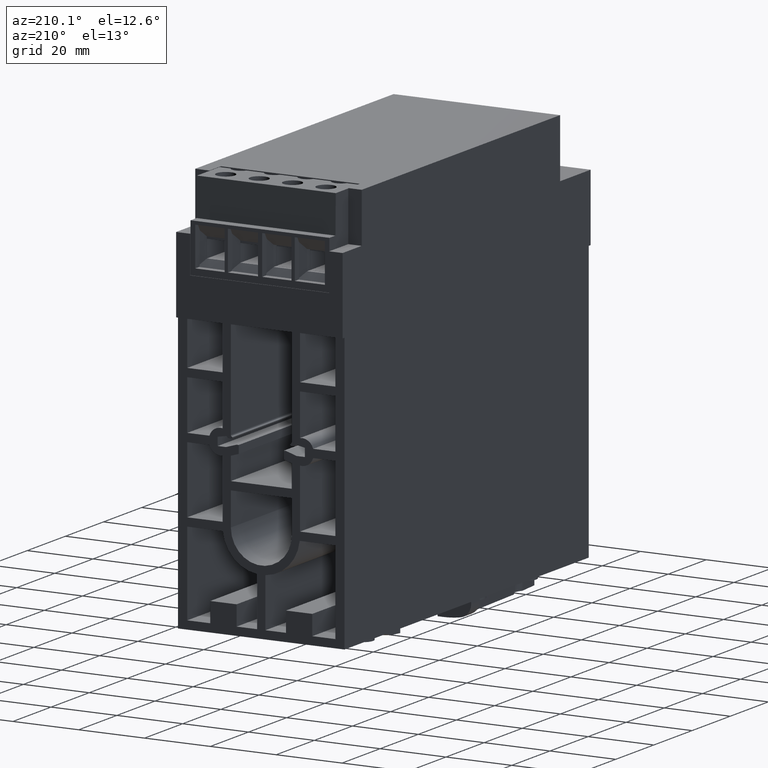
[diagram: clean part render]
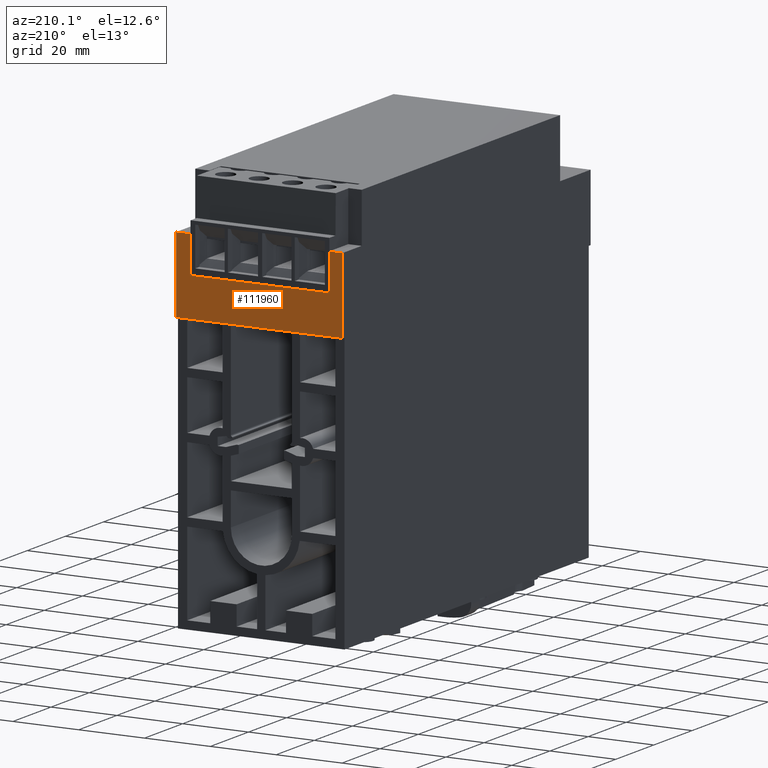
[diagram: same view with one face highlighted and labeled with its STEP entity id]
A machine part, auxiliary view. The second image highlights one B-rep face of the part: STEP entity #111960.
In plain terms, the highlighted planar face has unit normal (0, 1, 0).
Its self-contained STEP definition (entity closure, byte-faithful):
#1350=CARTESIAN_POINT('',(25.2993386672442,129.,-107.));
#1360=VERTEX_POINT('',#1350);
#1390=CARTESIAN_POINT('',(25.2993386672442,0.,-107.));
#1400=DIRECTION('',(0.,-1.,0.));
#1410=VECTOR('',#1400,1.);
#1420=LINE('',#1390,#1410);
#1430=CARTESIAN_POINT('',(25.2993386672442,106.,-107.));
#1440=VERTEX_POINT('',#1430);
#1450=EDGE_CURVE('',#1360,#1440,#1420,.T.);
#28330=CARTESIAN_POINT('',(-25.3,106.,-107.));
#28340=VERTEX_POINT('',#28330);
#28790=CARTESIAN_POINT('',(0.,106.,-107.));
#28800=DIRECTION('',(-1.,0.,0.));
#28810=VECTOR('',#28800,1.);
#28820=LINE('',#28790,#28810);
#28830=EDGE_CURVE('',#1440,#28340,#28820,.T.);
#56800=CARTESIAN_POINT('',(-25.3,129.,-107.));
#56810=VERTEX_POINT('',#56800);
#56840=CARTESIAN_POINT('',(0.,129.,-107.));
#56850=DIRECTION('',(-1.,0.,0.));
#56860=VECTOR('',#56850,1.);
#56870=LINE('',#56840,#56860);
#56880=CARTESIAN_POINT('',(-21.2,129.,-107.));
#56890=VERTEX_POINT('',#56880);
#56900=EDGE_CURVE('',#56890,#56810,#56870,.T.);
#58430=CARTESIAN_POINT('',(21.,129.,-107.));
#58440=VERTEX_POINT('',#58430);
#58590=CARTESIAN_POINT('',(21.,117.8,-107.));
#58600=VERTEX_POINT('',#58590);
#58630=CARTESIAN_POINT('',(21.,0.,-107.));
#58640=DIRECTION('',(0.,-1.,0.));
#58650=VECTOR('',#58640,1.);
#58660=LINE('',#58630,#58650);
#58670=EDGE_CURVE('',#58440,#58600,#58660,.T.);
#72010=CARTESIAN_POINT('',(-21.2,117.8,-107.));
#72020=VERTEX_POINT('',#72010);
#72120=CARTESIAN_POINT('',(-21.2,0.,-107.));
#72130=DIRECTION('',(0.,-1.,0.));
#72140=VECTOR('',#72130,1.);
#72150=LINE('',#72120,#72140);
#72160=EDGE_CURVE('',#56890,#72020,#72150,.T.);
#90470=CARTESIAN_POINT('',(0.,117.8,-107.));
#90480=DIRECTION('',(1.,0.,0.));
#90490=VECTOR('',#90480,1.);
#90500=LINE('',#90470,#90490);
#90510=EDGE_CURVE('',#72020,#58600,#90500,.T.);
#111600=CARTESIAN_POINT('',(-25.3,0.,-107.));
#111610=DIRECTION('',(0.,1.,0.));
#111620=VECTOR('',#111610,1.);
#111630=LINE('',#111600,#111620);
#111640=EDGE_CURVE('',#28340,#56810,#111630,.T.);
#111760=CARTESIAN_POINT('',(26.251323,105.423677,-107.));
#111770=DIRECTION('',(0.,0.,-1.));
#111780=DIRECTION('',(-1.,0.,0.));
#111790=AXIS2_PLACEMENT_3D('',#111760,#111770,#111780);
#111800=PLANE('',#111790);
#111810=CARTESIAN_POINT('',(0.,129.,-107.));
#111820=DIRECTION('',(-1.,0.,0.));
#111830=VECTOR('',#111820,1.);
#111840=LINE('',#111810,#111830);
#111850=EDGE_CURVE('',#1360,#58440,#111840,.T.);
#111860=ORIENTED_EDGE('',*,*,#111850,.F.);
#111870=ORIENTED_EDGE('',*,*,#58670,.F.);
#111880=ORIENTED_EDGE('',*,*,#90510,.T.);
#111890=ORIENTED_EDGE('',*,*,#72160,.T.);
#111900=ORIENTED_EDGE('',*,*,#56900,.F.);
#111910=ORIENTED_EDGE('',*,*,#111640,.T.);
#111920=ORIENTED_EDGE('',*,*,#28830,.T.);
#111930=ORIENTED_EDGE('',*,*,#1450,.T.);
#111940=EDGE_LOOP('',(#111930,#111920,#111910,#111900,#111890,#111880,
#111870,#111860));
#111950=FACE_OUTER_BOUND('',#111940,.T.);
#111960=ADVANCED_FACE('',(#111950),#111800,.T.);